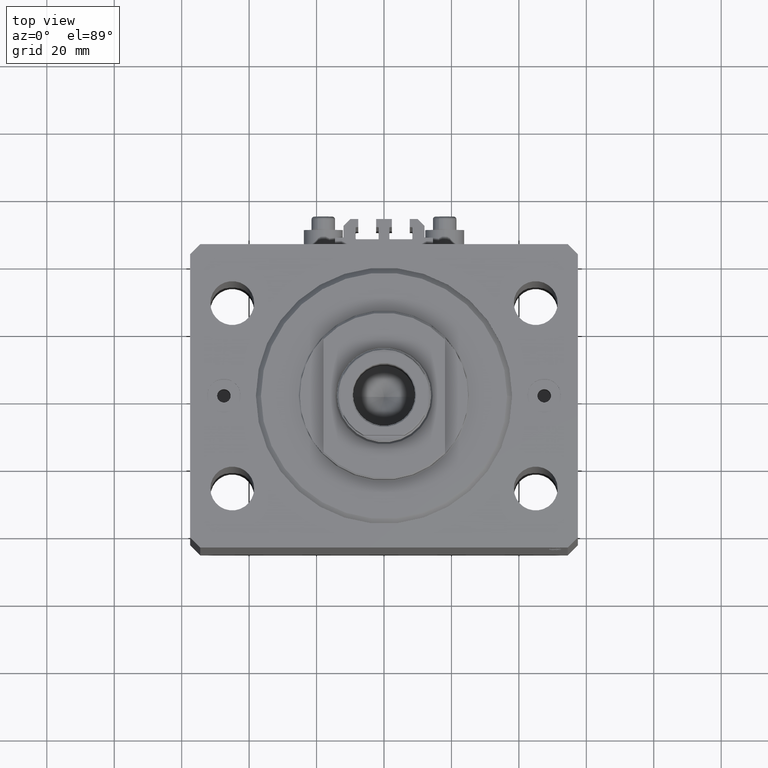
[diagram: clean part render]
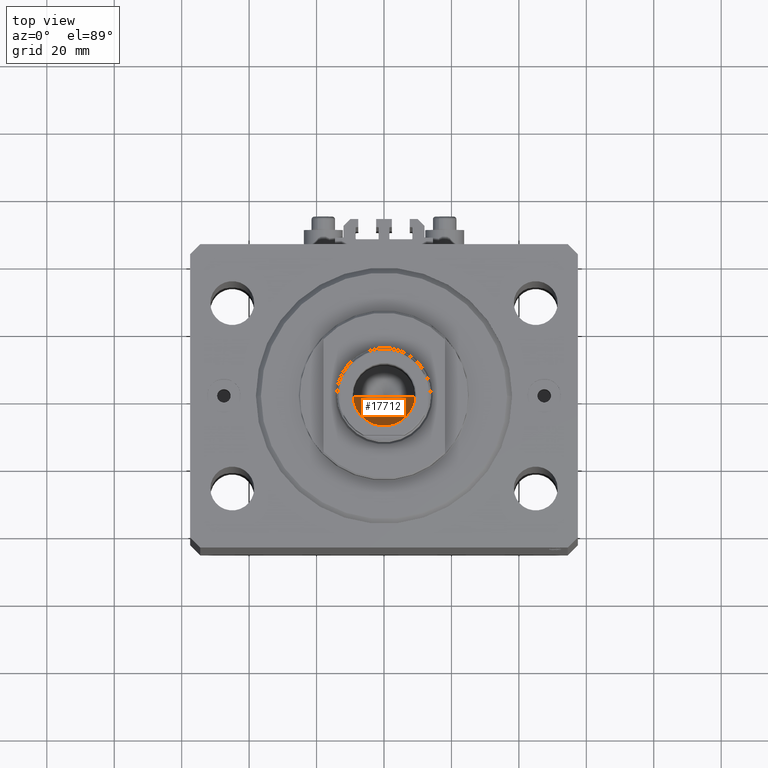
[diagram: same view with one face highlighted and labeled with its STEP entity id]
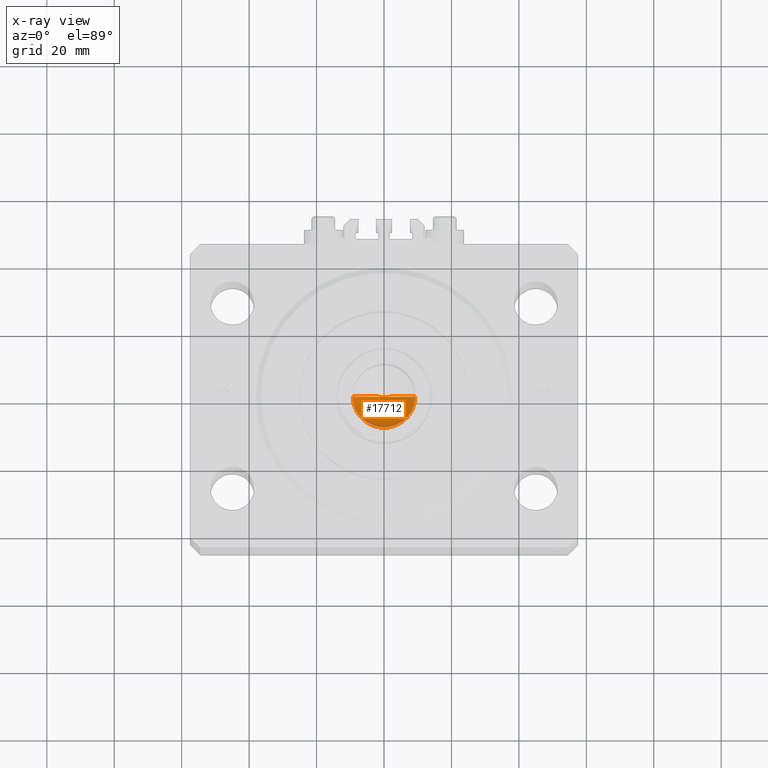
[diagram: x-ray of the same camera — body ghosted, the highlighted face saturated]
A machine part, top view. The second image highlights one B-rep face of the part: STEP entity #17712.
The next image is the same camera in x-ray: the body ghosted, the highlighted face saturated — about 8% of this face is hidden behind the body in this view.
In plain terms, the highlighted conical surface has half-angle 59 deg.
Its self-contained STEP definition (entity closure, byte-faithful):
#439 = EDGE_CURVE ( 'NONE', #8107, #24094, #44353, .T. ) ;
#675 = ORIENTED_EDGE ( 'NONE', *, *, #42048, .F. ) ;
#4965 = LINE ( 'NONE', #23828, #23710 ) ;
#5302 = DIRECTION ( 'NONE',  ( 1.000000000000000000, 0.000000000000000000, 0.000000000000000000 ) ) ;
#6358 = EDGE_LOOP ( 'NONE', ( #675, #46977, #39375 ) ) ;
#7824 = CONICAL_SURFACE ( 'NONE', #34514, 9.249999999999994671, 1.029744258676653423 ) ;
#8107 = VERTEX_POINT ( 'NONE', #43332 ) ;
#12140 = EDGE_CURVE ( 'NONE', #35925, #8107, #36032, .T. ) ;
#17214 = CARTESIAN_POINT ( 'NONE',  ( 0.000000000000000000, 0.000000000000000000, 102.0999999999999943 ) ) ;
#17712 = ADVANCED_FACE ( 'NONE', ( #31558 ), #7824, .F. ) ;
#23710 = VECTOR ( 'NONE', #30750, 1000.000000000000000 ) ;
#23804 = AXIS2_PLACEMENT_3D ( 'NONE', #34747, #42136, #38784 ) ;
#23828 = CARTESIAN_POINT ( 'NONE',  ( 9.249999999999994671, 0.000000000000000000, 102.0999999999999943 ) ) ;
#23959 = CARTESIAN_POINT ( 'NONE',  ( -9.249999999999994671, 1.132798289211300909E-15, 102.0999999999999943 ) ) ;
#24094 = VERTEX_POINT ( 'NONE', #26875 ) ;
#26875 = CARTESIAN_POINT ( 'NONE',  ( 9.249999999999994671, 0.000000000000000000, 102.0999999999999943 ) ) ;
#30750 = DIRECTION ( 'NONE',  ( 0.8571673007021117785, 0.000000000000000000, 0.5150380749100550437 ) ) ;
#31558 = FACE_OUTER_BOUND ( 'NONE', #6358, .T. ) ;
#34514 = AXIS2_PLACEMENT_3D ( 'NONE', #17214, #45871, #5302 ) ;
#34747 = CARTESIAN_POINT ( 'NONE',  ( 0.000000000000000000, 0.000000000000000000, 102.0999999999999943 ) ) ;
#35925 = VERTEX_POINT ( 'NONE', #39711 ) ;
#36032 = LINE ( 'NONE', #23959, #40130 ) ;
#38493 = DIRECTION ( 'NONE',  ( -0.8571673007021117785, 1.049727191138617956E-16, 0.5150380749100550437 ) ) ;
#38784 = DIRECTION ( 'NONE',  ( 1.000000000000000000, 0.000000000000000000, 0.000000000000000000 ) ) ;
#39375 = ORIENTED_EDGE ( 'NONE', *, *, #439, .T. ) ;
#39711 = CARTESIAN_POINT ( 'NONE',  ( -1.046994375366439223E-14, 0.000000000000000000, 96.54203927399505858 ) ) ;
#40130 = VECTOR ( 'NONE', #38493, 1000.000000000000000 ) ;
#42048 = EDGE_CURVE ( 'NONE', #35925, #24094, #4965, .T. ) ;
#42136 = DIRECTION ( 'NONE',  ( -0.000000000000000000, -0.000000000000000000, 1.000000000000000000 ) ) ;
#43332 = CARTESIAN_POINT ( 'NONE',  ( -9.249999999999994671, 1.132798289211300909E-15, 102.0999999999999943 ) ) ;
#44353 = CIRCLE ( 'NONE', #23804, 9.249999999999994671 ) ;
#45871 = DIRECTION ( 'NONE',  ( -0.000000000000000000, -0.000000000000000000, 1.000000000000000000 ) ) ;
#46977 = ORIENTED_EDGE ( 'NONE', *, *, #12140, .T. ) ;